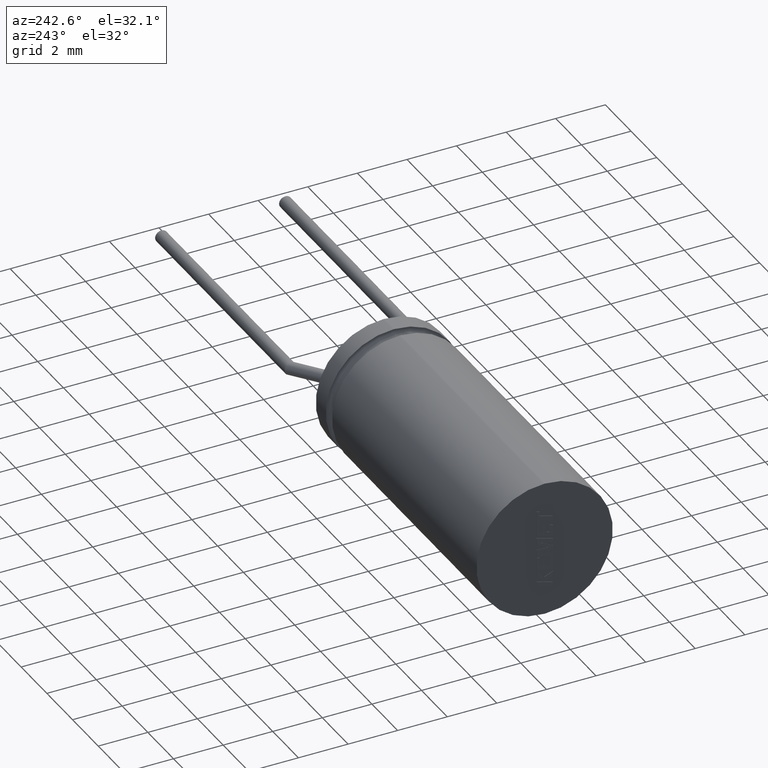
[diagram: clean part render]
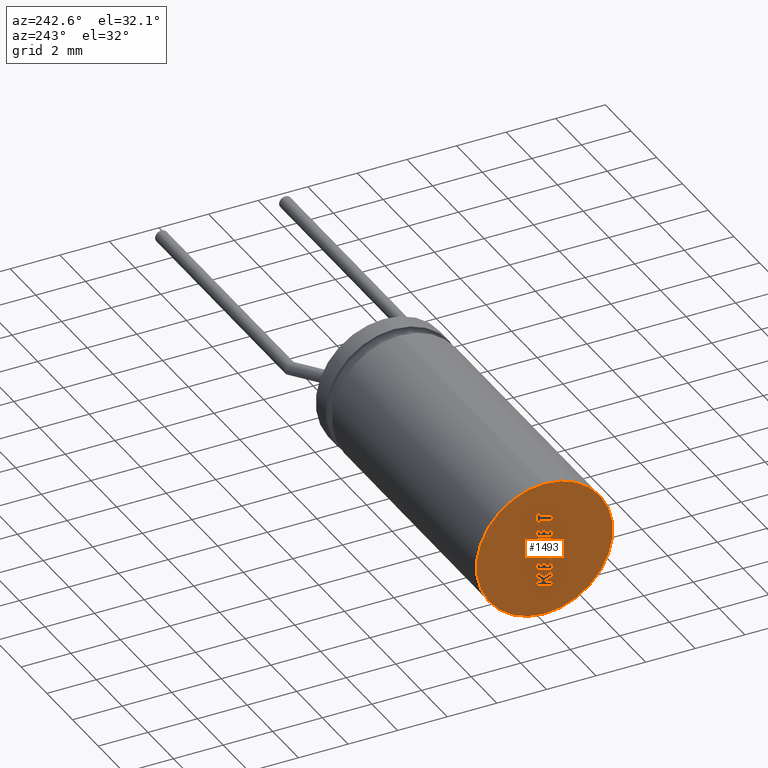
[diagram: same view with one face highlighted and labeled with its STEP entity id]
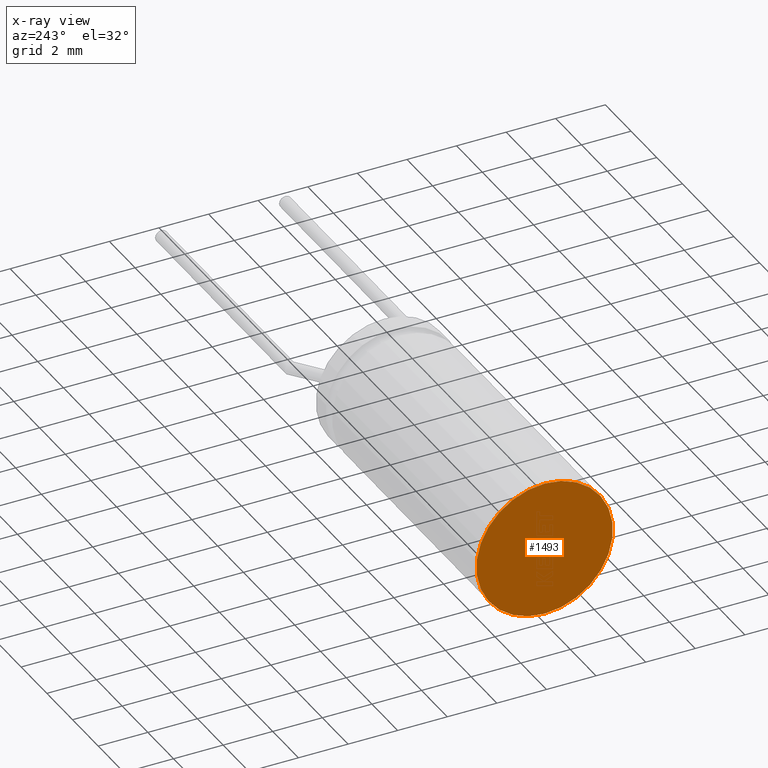
[diagram: x-ray of the same camera — body ghosted, the highlighted face saturated]
A machine part, auxiliary view. The second image highlights one B-rep face of the part: STEP entity #1493.
The next image is the same camera in x-ray: the body ghosted, the highlighted face saturated — about 0% of this face is hidden behind the body in this view.
In plain terms, the highlighted planar face has unit normal (1, 0, 0).
Its self-contained STEP definition (entity closure, byte-faithful):
#57 = PLANE ( 'NONE',  #1296 ) ;
#135 = CARTESIAN_POINT ( 'NONE',  ( 0.0000000000000000000, 0.0000000000000000000, 2.750000000000000000 ) ) ;
#171 = ORIENTED_EDGE ( 'NONE', *, *, #2245, .F. ) ;
#397 = CIRCLE ( 'NONE', #1958, 2.750000000000000000 ) ;
#673 = EDGE_CURVE ( 'NONE', #830, #1035, #2781, .T. ) ;
#830 = VERTEX_POINT ( 'NONE', #1174 ) ;
#978 = EDGE_LOOP ( 'NONE', ( #171, #3627 ) ) ;
#1035 = VERTEX_POINT ( 'NONE', #135 ) ;
#1174 = CARTESIAN_POINT ( 'NONE',  ( 0.0000000000000000000, 3.367778697655221000E-016, -2.750000000000000000 ) ) ;
#1220 = AXIS2_PLACEMENT_3D ( 'NONE', #1630, #3321, #2177 ) ;
#1296 = AXIS2_PLACEMENT_3D ( 'NONE', #1745, #2897, #2619 ) ;
#1493 = ADVANCED_FACE ( 'NONE', ( #1832 ), #57, .F. ) ;
#1630 = CARTESIAN_POINT ( 'NONE',  ( 0.0000000000000000000, 0.0000000000000000000, 0.0000000000000000000 ) ) ;
#1699 = DIRECTION ( 'NONE',  ( 0.0000000000000000000, 0.0000000000000000000, -1.000000000000000000 ) ) ;
#1745 = CARTESIAN_POINT ( 'NONE',  ( 0.0000000000000000000, 0.0000000000000000000, 0.0000000000000000000 ) ) ;
#1832 = FACE_OUTER_BOUND ( 'NONE', #978, .T. ) ;
#1958 = AXIS2_PLACEMENT_3D ( 'NONE', #3666, #3119, #1699 ) ;
#2177 = DIRECTION ( 'NONE',  ( 0.0000000000000000000, 0.0000000000000000000, -1.000000000000000000 ) ) ;
#2245 = EDGE_CURVE ( 'NONE', #1035, #830, #397, .T. ) ;
#2619 = DIRECTION ( 'NONE',  ( 0.0000000000000000000, 0.0000000000000000000, -1.000000000000000000 ) ) ;
#2781 = CIRCLE ( 'NONE', #1220, 2.750000000000000000 ) ;
#2897 = DIRECTION ( 'NONE',  ( 1.000000000000000000, 0.0000000000000000000, 0.0000000000000000000 ) ) ;
#3119 = DIRECTION ( 'NONE',  ( 1.000000000000000000, 0.0000000000000000000, 0.0000000000000000000 ) ) ;
#3321 = DIRECTION ( 'NONE',  ( 1.000000000000000000, 0.0000000000000000000, 0.0000000000000000000 ) ) ;
#3627 = ORIENTED_EDGE ( 'NONE', *, *, #673, .F. ) ;
#3666 = CARTESIAN_POINT ( 'NONE',  ( 0.0000000000000000000, 0.0000000000000000000, 0.0000000000000000000 ) ) ;